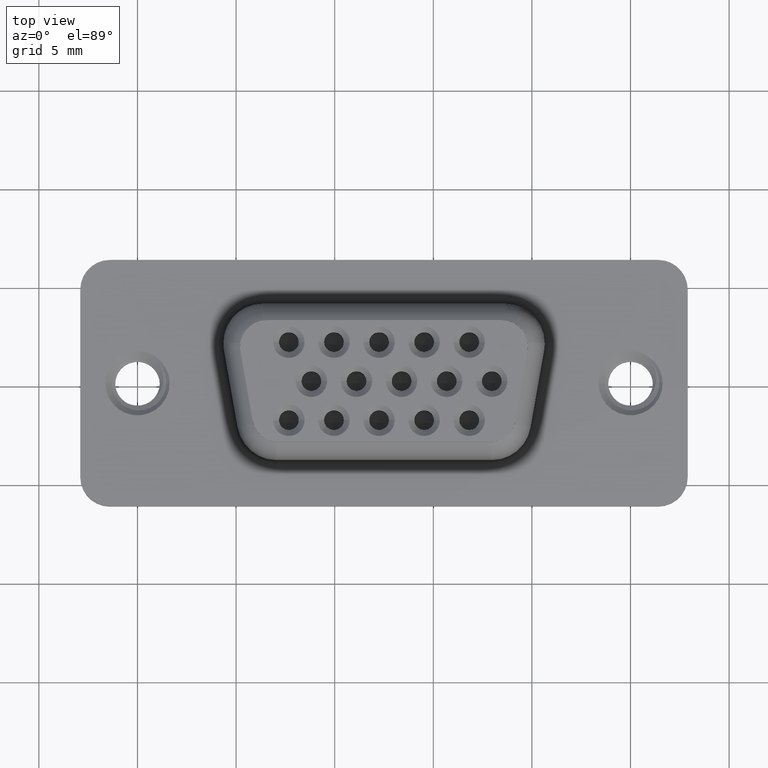
[diagram: clean part render]
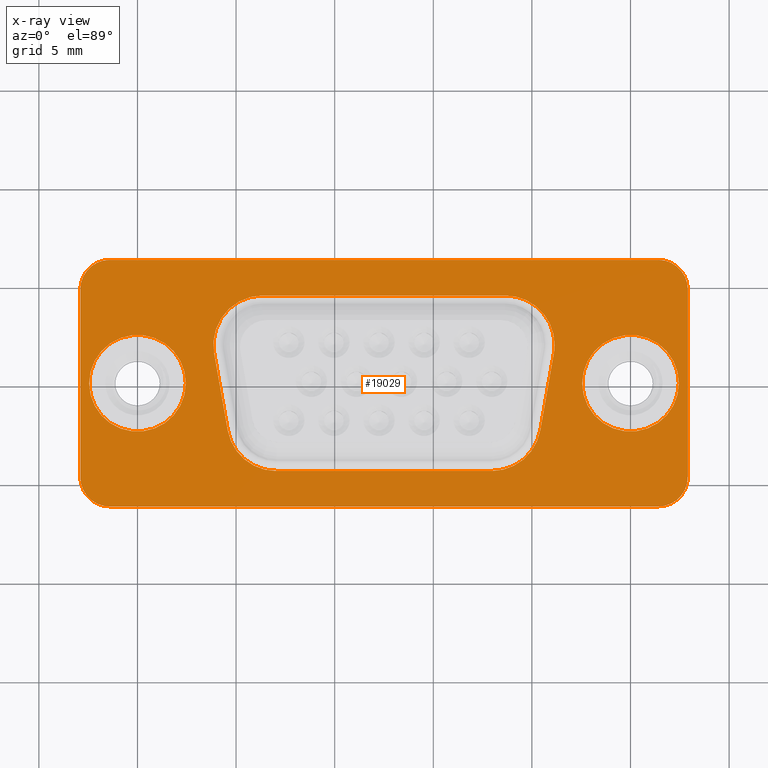
[diagram: x-ray — body ghosted, one internal face saturated and labeled with its STEP entity id]
A machine part, top view, then the same camera in x-ray: the body is ghosted and one INTERNAL B-rep face — a face not visible from any outside direction — is saturated and labeled: STEP entity #19029.
In plain terms, the highlighted planar face has unit normal (0, 0, 1).
Its self-contained STEP definition (entity closure, byte-faithful):
#93 = VERTEX_POINT ( 'NONE', #14036 ) ;
#160 = ORIENTED_EDGE ( 'NONE', *, *, #7173, .F. ) ;
#238 = ORIENTED_EDGE ( 'NONE', *, *, #6918, .F. ) ;
#296 = DIRECTION ( 'NONE',  ( -1.000000000000000000, -1.560003125878423870E-16, 0.0000000000000000000 ) ) ;
#309 = DIRECTION ( 'NONE',  ( 1.000000000000000000, 0.0000000000000000000, -0.0000000000000000000 ) ) ;
#351 = DIRECTION ( 'NONE',  ( -0.0000000000000000000, -1.000000000000000000, -0.0000000000000000000 ) ) ;
#484 = LINE ( 'NONE', #18300, #4141 ) ;
#574 = EDGE_CURVE ( 'NONE', #12745, #5405, #10669, .T. ) ;
#919 = DIRECTION ( 'NONE',  ( 1.000000000000000000, 0.0000000000000000000, 0.0000000000000000000 ) ) ;
#985 = ORIENTED_EDGE ( 'NONE', *, *, #5855, .F. ) ;
#1111 = DIRECTION ( 'NONE',  ( -0.1736481776669235866, 0.9848077530122093526, -0.0000000000000000000 ) ) ;
#1193 = AXIS2_PLACEMENT_3D ( 'NONE', #5966, #17952, #4514 ) ;
#1268 = DIRECTION ( 'NONE',  ( -0.0000000000000000000, -0.0000000000000000000, -1.000000000000000000 ) ) ;
#1364 = CARTESIAN_POINT ( 'NONE',  ( 18.65000000000000924, 1.949999999999996847, -2.168404344971008868E-16 ) ) ;
#1424 = VERTEX_POINT ( 'NONE', #16626 ) ;
#1426 = CARTESIAN_POINT ( 'NONE',  ( 26.39999999999999503, 6.250000000000001776, 0.0000000000000000000 ) ) ;
#1511 = VECTOR ( 'NONE', #309, 1000.000000000000000 ) ;
#1562 = VERTEX_POINT ( 'NONE', #9850 ) ;
#1613 = AXIS2_PLACEMENT_3D ( 'NONE', #7198, #11718, #11812 ) ;
#1632 = CARTESIAN_POINT ( 'NONE',  ( 21.15000000000001279, 1.949999999999996847, -2.168404344971008868E-16 ) ) ;
#1635 = VERTEX_POINT ( 'NONE', #12411 ) ;
#1670 = DIRECTION ( 'NONE',  ( 1.000000000000000000, 8.673617379884040402E-16, 0.0000000000000000000 ) ) ;
#1766 = CARTESIAN_POINT ( 'NONE',  ( 21.11201938253054067, 1.515879555832687187, -2.168404344971008868E-16 ) ) ;
#1919 = EDGE_CURVE ( 'NONE', #13788, #15530, #7244, .T. ) ;
#2071 = LINE ( 'NONE', #3618, #16554 ) ;
#2358 = ORIENTED_EDGE ( 'NONE', *, *, #17083, .F. ) ;
#2487 = VECTOR ( 'NONE', #4016, 999.9999999999998863 ) ;
#2611 = CIRCLE ( 'NONE', #11366, 2.499999999999999556 ) ;
#2970 = ORIENTED_EDGE ( 'NONE', *, *, #3703, .F. ) ;
#2994 = ORIENTED_EDGE ( 'NONE', *, *, #11202, .F. ) ;
#3007 = DIRECTION ( 'NONE',  ( -0.0000000000000000000, -0.0000000000000000000, -1.000000000000000000 ) ) ;
#3013 = CIRCLE ( 'NONE', #15210, 1.500000000000000888 ) ;
#3153 = DIRECTION ( 'NONE',  ( 1.000000000000000000, 0.0000000000000000000, -0.0000000000000000000 ) ) ;
#3217 = ORIENTED_EDGE ( 'NONE', *, *, #5493, .F. ) ;
#3265 = AXIS2_PLACEMENT_3D ( 'NONE', #13834, #5289, #6367 ) ;
#3377 = DIRECTION ( 'NONE',  ( -0.0000000000000000000, -0.0000000000000000000, -1.000000000000000000 ) ) ;
#3426 = DIRECTION ( 'NONE',  ( -1.000000000000000000, -0.0000000000000000000, 0.0000000000000000000 ) ) ;
#3464 = CARTESIAN_POINT ( 'NONE',  ( -2.900000000000003464, -4.750000000000002665, 0.0000000000000000000 ) ) ;
#3618 = CARTESIAN_POINT ( 'NONE',  ( 26.39999999999999503, -4.450000000000001066, 0.0000000000000000000 ) ) ;
#3703 = EDGE_CURVE ( 'NONE', #1635, #6505, #15254, .T. ) ;
#3936 = DIRECTION ( 'NONE',  ( 0.0000000000000000000, 0.0000000000000000000, 1.000000000000000000 ) ) ;
#4016 = DIRECTION ( 'NONE',  ( -0.1736481776669242527, -0.9848077530122092416, 0.0000000000000000000 ) ) ;
#4141 = VECTOR ( 'NONE', #296, 1000.000000000000000 ) ;
#4153 = ORIENTED_EDGE ( 'NONE', *, *, #9150, .F. ) ;
#4179 = DIRECTION ( 'NONE',  ( 0.0000000000000000000, 1.000000000000000000, 0.0000000000000000000 ) ) ;
#4291 = VERTEX_POINT ( 'NONE', #1766 ) ;
#4512 = EDGE_CURVE ( 'NONE', #14858, #1562, #2611, .T. ) ;
#4514 = DIRECTION ( 'NONE',  ( 1.000000000000000000, 0.0000000000000000000, 0.0000000000000000000 ) ) ;
#4559 = EDGE_CURVE ( 'NONE', #5405, #9407, #16372, .T. ) ;
#4632 = CARTESIAN_POINT ( 'NONE',  ( -1.400000000000001688, -6.250000000000001776, 0.0000000000000000000 ) ) ;
#4836 = DIRECTION ( 'NONE',  ( 1.000000000000000000, 0.0000000000000000000, 0.0000000000000000000 ) ) ;
#5008 = EDGE_LOOP ( 'NONE', ( #2970, #985, #3217, #8044, #5713, #13777, #2358, #8268 ) ) ;
#5218 = VERTEX_POINT ( 'NONE', #4632 ) ;
#5257 = ORIENTED_EDGE ( 'NONE', *, *, #5910, .F. ) ;
#5289 = DIRECTION ( 'NONE',  ( 0.0000000000000000000, 0.0000000000000000000, 1.000000000000000000 ) ) ;
#5405 = VERTEX_POINT ( 'NONE', #11010 ) ;
#5493 = EDGE_CURVE ( 'NONE', #8604, #6980, #14880, .T. ) ;
#5631 = EDGE_CURVE ( 'NONE', #93, #12594, #11759, .T. ) ;
#5713 = ORIENTED_EDGE ( 'NONE', *, *, #15055, .F. ) ;
#5837 = CARTESIAN_POINT ( 'NONE',  ( 2.449999999999999734, 0.0000000000000000000, 0.0000000000000000000 ) ) ;
#5855 = EDGE_CURVE ( 'NONE', #6980, #1635, #17520, .T. ) ;
#5910 = EDGE_CURVE ( 'NONE', #16095, #12745, #18770, .T. ) ;
#5966 = CARTESIAN_POINT ( 'NONE',  ( 26.39999999999999503, 4.750000000000000888, 0.0000000000000000000 ) ) ;
#6076 = FACE_BOUND ( 'NONE', #14824, .T. ) ;
#6103 = ORIENTED_EDGE ( 'NONE', *, *, #4512, .F. ) ;
#6367 = DIRECTION ( 'NONE',  ( -1.000000000000000000, 0.0000000000000000000, 0.0000000000000000000 ) ) ;
#6443 = CARTESIAN_POINT ( 'NONE',  ( 26.39999999999999503, -6.250000000000000000, 0.0000000000000000000 ) ) ;
#6505 = VERTEX_POINT ( 'NONE', #1426 ) ;
#6582 = EDGE_CURVE ( 'NONE', #7255, #1424, #15418, .T. ) ;
#6761 = LINE ( 'NONE', #12767, #2487 ) ;
#6874 = VERTEX_POINT ( 'NONE', #11378 ) ;
#6890 = EDGE_CURVE ( 'NONE', #4291, #93, #6761, .T. ) ;
#6918 = EDGE_CURVE ( 'NONE', #6874, #11028, #12491, .T. ) ;
#6980 = VERTEX_POINT ( 'NONE', #7050 ) ;
#7050 = CARTESIAN_POINT ( 'NONE',  ( 27.89999999999999858, -4.749999999999999112, 0.0000000000000000000 ) ) ;
#7173 = EDGE_CURVE ( 'NONE', #12594, #14858, #2071, .T. ) ;
#7198 = CARTESIAN_POINT ( 'NONE',  ( 25.00000000000000000, 4.592425496802575156E-15, 0.0000000000000000000 ) ) ;
#7244 = CIRCLE ( 'NONE', #16003, 2.449999999999999734 ) ;
#7255 = VERTEX_POINT ( 'NONE', #13726 ) ;
#7331 = EDGE_CURVE ( 'NONE', #9407, #4291, #9632, .T. ) ;
#7383 = CARTESIAN_POINT ( 'NONE',  ( -2.449999999999999734, 3.000384657911015370E-16, 0.0000000000000000000 ) ) ;
#7480 = CARTESIAN_POINT ( 'NONE',  ( 0.0000000000000000000, 0.0000000000000000000, 0.0000000000000000000 ) ) ;
#7493 = CARTESIAN_POINT ( 'NONE',  ( 6.350000000000004974, 4.449999999999997513, 0.0000000000000000000 ) ) ;
#8044 = ORIENTED_EDGE ( 'NONE', *, *, #17483, .F. ) ;
#8080 = LINE ( 'NONE', #18473, #15844 ) ;
#8268 = ORIENTED_EDGE ( 'NONE', *, *, #16371, .F. ) ;
#8442 = DIRECTION ( 'NONE',  ( 1.000000000000000000, 0.0000000000000000000, 0.0000000000000000000 ) ) ;
#8566 = CARTESIAN_POINT ( 'NONE',  ( 0.0000000000000000000, 0.0000000000000000000, 0.0000000000000000000 ) ) ;
#8584 = CARTESIAN_POINT ( 'NONE',  ( 27.89999999999999858, -4.749999999999999112, 0.0000000000000000000 ) ) ;
#8593 = DIRECTION ( 'NONE',  ( -0.0000000000000000000, -0.0000000000000000000, -1.000000000000000000 ) ) ;
#8604 = VERTEX_POINT ( 'NONE', #6443 ) ;
#8680 = DIRECTION ( 'NONE',  ( 1.000000000000000000, 8.673617379884037444E-16, 0.0000000000000000000 ) ) ;
#8855 = ORIENTED_EDGE ( 'NONE', *, *, #1919, .F. ) ;
#9061 = VECTOR ( 'NONE', #351, 1000.000000000000000 ) ;
#9089 = DIRECTION ( 'NONE',  ( -0.0000000000000000000, -0.0000000000000000000, -1.000000000000000000 ) ) ;
#9150 = EDGE_CURVE ( 'NONE', #15530, #13788, #13865, .T. ) ;
#9220 = FACE_BOUND ( 'NONE', #12785, .T. ) ;
#9288 = CARTESIAN_POINT ( 'NONE',  ( 26.39999999999999503, 4.449999999999997513, 0.0000000000000000000 ) ) ;
#9407 = VERTEX_POINT ( 'NONE', #1632 ) ;
#9587 = ORIENTED_EDGE ( 'NONE', *, *, #7331, .F. ) ;
#9632 = CIRCLE ( 'NONE', #10277, 2.500000000000002220 ) ;
#9753 = DIRECTION ( 'NONE',  ( -0.0000000000000000000, -0.0000000000000000000, -1.000000000000000000 ) ) ;
#9780 = DIRECTION ( 'NONE',  ( 1.000000000000000000, 0.0000000000000000000, 0.0000000000000000000 ) ) ;
#9850 = CARTESIAN_POINT ( 'NONE',  ( 4.575655842232465353, -2.384120444167310726, 0.0000000000000000000 ) ) ;
#9911 = CARTESIAN_POINT ( 'NONE',  ( 26.39999999999999503, -4.749999999999999112, 0.0000000000000000000 ) ) ;
#9950 = DIRECTION ( 'NONE',  ( 1.000000000000000000, 0.0000000000000000000, 0.0000000000000000000 ) ) ;
#9966 = CARTESIAN_POINT ( 'NONE',  ( 6.350000000000005862, 1.949999999999996847, -2.168404344971008868E-16 ) ) ;
#10161 = CARTESIAN_POINT ( 'NONE',  ( 7.037675224762990567, -1.950000000000002176, -2.168404344971008868E-16 ) ) ;
#10277 = AXIS2_PLACEMENT_3D ( 'NONE', #15764, #8593, #9780 ) ;
#10474 = VECTOR ( 'NONE', #1111, 999.9999999999998863 ) ;
#10486 = ORIENTED_EDGE ( 'NONE', *, *, #6890, .F. ) ;
#10597 = CARTESIAN_POINT ( 'NONE',  ( 26.39999999999999503, 4.750000000000000888, 0.0000000000000000000 ) ) ;
#10669 = LINE ( 'NONE', #9288, #1511 ) ;
#10766 = CIRCLE ( 'NONE', #3265, 1.500000000000000444 ) ;
#10935 = AXIS2_PLACEMENT_3D ( 'NONE', #9966, #18895, #11252 ) ;
#11010 = CARTESIAN_POINT ( 'NONE',  ( 18.65000000000000924, 4.449999999999997513, 0.0000000000000000000 ) ) ;
#11028 = VERTEX_POINT ( 'NONE', #14282 ) ;
#11053 = AXIS2_PLACEMENT_3D ( 'NONE', #1364, #3007, #16522 ) ;
#11202 = EDGE_CURVE ( 'NONE', #11028, #6874, #11298, .T. ) ;
#11252 = DIRECTION ( 'NONE',  ( 1.000000000000000000, 0.0000000000000000000, 0.0000000000000000000 ) ) ;
#11298 = CIRCLE ( 'NONE', #1613, 2.449999999999997513 ) ;
#11334 = DIRECTION ( 'NONE',  ( 0.0000000000000000000, 0.0000000000000000000, 1.000000000000000000 ) ) ;
#11366 = AXIS2_PLACEMENT_3D ( 'NONE', #10161, #1268, #8680 ) ;
#11378 = CARTESIAN_POINT ( 'NONE',  ( 22.55000000000000426, 4.892463962593675953E-15, 0.0000000000000000000 ) ) ;
#11718 = DIRECTION ( 'NONE',  ( -0.0000000000000000000, -0.0000000000000000000, -1.000000000000000000 ) ) ;
#11759 = CIRCLE ( 'NONE', #14273, 2.499999999999998668 ) ;
#11801 = EDGE_LOOP ( 'NONE', ( #8855, #4153 ) ) ;
#11812 = DIRECTION ( 'NONE',  ( 1.000000000000000000, 0.0000000000000000000, 0.0000000000000000000 ) ) ;
#12179 = ORIENTED_EDGE ( 'NONE', *, *, #574, .F. ) ;
#12411 = CARTESIAN_POINT ( 'NONE',  ( 27.89999999999999858, 4.750000000000000888, 0.0000000000000000000 ) ) ;
#12491 = CIRCLE ( 'NONE', #15609, 2.449999999999997513 ) ;
#12594 = VERTEX_POINT ( 'NONE', #18970 ) ;
#12745 = VERTEX_POINT ( 'NONE', #7493 ) ;
#12767 = CARTESIAN_POINT ( 'NONE',  ( 21.11201938253053356, 1.515879555832687853, -2.168404344971008868E-16 ) ) ;
#12785 = EDGE_LOOP ( 'NONE', ( #13679, #6103, #160, #14930, #10486, #9587, #17681, #12179, #5257 ) ) ;
#12861 = CARTESIAN_POINT ( 'NONE',  ( 25.00000000000000000, 4.592425496802575156E-15, 0.0000000000000000000 ) ) ;
#12966 = CARTESIAN_POINT ( 'NONE',  ( 4.575655842232465353, -2.384120444167311170, -2.168404344971008868E-16 ) ) ;
#13534 = CARTESIAN_POINT ( 'NONE',  ( -1.400000000000002132, 6.249999999999998224, 0.0000000000000000000 ) ) ;
#13679 = ORIENTED_EDGE ( 'NONE', *, *, #15646, .F. ) ;
#13726 = CARTESIAN_POINT ( 'NONE',  ( -2.900000000000003464, 4.749999999999997335, 0.0000000000000000000 ) ) ;
#13777 = ORIENTED_EDGE ( 'NONE', *, *, #6582, .F. ) ;
#13788 = VERTEX_POINT ( 'NONE', #5837 ) ;
#13834 = CARTESIAN_POINT ( 'NONE',  ( -1.400000000000001910, -4.750000000000002665, 0.0000000000000000000 ) ) ;
#13865 = CIRCLE ( 'NONE', #16352, 2.449999999999999734 ) ;
#14036 = CARTESIAN_POINT ( 'NONE',  ( 20.42434415776754975, -2.384120444167310726, 0.0000000000000000000 ) ) ;
#14273 = AXIS2_PLACEMENT_3D ( 'NONE', #16447, #9089, #1670 ) ;
#14282 = CARTESIAN_POINT ( 'NONE',  ( 27.44999999999999929, 4.592425496802575156E-15, 0.0000000000000000000 ) ) ;
#14476 = CARTESIAN_POINT ( 'NONE',  ( -1.400000000000001910, 4.749999999999997335, 0.0000000000000000000 ) ) ;
#14526 = LINE ( 'NONE', #12966, #10474 ) ;
#14698 = VECTOR ( 'NONE', #4179, 1000.000000000000000 ) ;
#14824 = EDGE_LOOP ( 'NONE', ( #2994, #238 ) ) ;
#14858 = VERTEX_POINT ( 'NONE', #17956 ) ;
#14880 = CIRCLE ( 'NONE', #17387, 1.500000000000001332 ) ;
#14912 = FACE_BOUND ( 'NONE', #11801, .T. ) ;
#14930 = ORIENTED_EDGE ( 'NONE', *, *, #5631, .F. ) ;
#15055 = EDGE_CURVE ( 'NONE', #1424, #5218, #10766, .T. ) ;
#15210 = AXIS2_PLACEMENT_3D ( 'NONE', #14476, #11334, #15548 ) ;
#15254 = CIRCLE ( 'NONE', #1193, 1.500000000000001332 ) ;
#15418 = LINE ( 'NONE', #3464, #9061 ) ;
#15530 = VERTEX_POINT ( 'NONE', #7383 ) ;
#15548 = DIRECTION ( 'NONE',  ( 1.000000000000000000, 0.0000000000000000000, 0.0000000000000000000 ) ) ;
#15569 = CARTESIAN_POINT ( 'NONE',  ( 3.887980617469481093, 1.515879555832687853, 0.0000000000000000000 ) ) ;
#15609 = AXIS2_PLACEMENT_3D ( 'NONE', #12861, #17264, #919 ) ;
#15646 = EDGE_CURVE ( 'NONE', #1562, #16095, #14526, .T. ) ;
#15764 = CARTESIAN_POINT ( 'NONE',  ( 18.65000000000000924, 1.949999999999996847, -2.168404344971008868E-16 ) ) ;
#15768 = VERTEX_POINT ( 'NONE', #13534 ) ;
#15844 = VECTOR ( 'NONE', #17392, 1000.000000000000000 ) ;
#16003 = AXIS2_PLACEMENT_3D ( 'NONE', #7480, #3377, #4836 ) ;
#16095 = VERTEX_POINT ( 'NONE', #15569 ) ;
#16352 = AXIS2_PLACEMENT_3D ( 'NONE', #8566, #9753, #9950 ) ;
#16371 = EDGE_CURVE ( 'NONE', #6505, #15768, #484, .T. ) ;
#16372 = CIRCLE ( 'NONE', #11053, 2.500000000000002220 ) ;
#16447 = CARTESIAN_POINT ( 'NONE',  ( 17.96232477523702542, -1.950000000000002176, -2.168404344971008868E-16 ) ) ;
#16522 = DIRECTION ( 'NONE',  ( 1.000000000000000000, 0.0000000000000000000, 0.0000000000000000000 ) ) ;
#16554 = VECTOR ( 'NONE', #3426, 1000.000000000000000 ) ;
#16575 = DIRECTION ( 'NONE',  ( 0.0000000000000000000, 0.0000000000000000000, 1.000000000000000000 ) ) ;
#16626 = CARTESIAN_POINT ( 'NONE',  ( -2.900000000000002576, -4.750000000000002665, 0.0000000000000000000 ) ) ;
#16873 = PLANE ( 'NONE',  #17794 ) ;
#17083 = EDGE_CURVE ( 'NONE', #15768, #7255, #3013, .T. ) ;
#17264 = DIRECTION ( 'NONE',  ( -0.0000000000000000000, -0.0000000000000000000, -1.000000000000000000 ) ) ;
#17387 = AXIS2_PLACEMENT_3D ( 'NONE', #9911, #3936, #8442 ) ;
#17392 = DIRECTION ( 'NONE',  ( 1.000000000000000000, 9.360018755270542231E-17, -0.0000000000000000000 ) ) ;
#17483 = EDGE_CURVE ( 'NONE', #5218, #8604, #8080, .T. ) ;
#17520 = LINE ( 'NONE', #8584, #14698 ) ;
#17681 = ORIENTED_EDGE ( 'NONE', *, *, #4559, .F. ) ;
#17794 = AXIS2_PLACEMENT_3D ( 'NONE', #10597, #16575, #3153 ) ;
#17952 = DIRECTION ( 'NONE',  ( 0.0000000000000000000, 0.0000000000000000000, 1.000000000000000000 ) ) ;
#17956 = CARTESIAN_POINT ( 'NONE',  ( 7.037675224762989679, -4.450000000000002842, 0.0000000000000000000 ) ) ;
#18052 = FACE_OUTER_BOUND ( 'NONE', #5008, .T. ) ;
#18300 = CARTESIAN_POINT ( 'NONE',  ( 26.39999999999999503, 6.250000000000001776, 0.0000000000000000000 ) ) ;
#18473 = CARTESIAN_POINT ( 'NONE',  ( 26.39999999999999503, -6.249999999999999112, 0.0000000000000000000 ) ) ;
#18770 = CIRCLE ( 'NONE', #10935, 2.499999999999999556 ) ;
#18895 = DIRECTION ( 'NONE',  ( -0.0000000000000000000, -0.0000000000000000000, -1.000000000000000000 ) ) ;
#18970 = CARTESIAN_POINT ( 'NONE',  ( 17.96232477523702542, -4.450000000000001066, 0.0000000000000000000 ) ) ;
#19029 = ADVANCED_FACE ( 'NONE', ( #6076, #9220, #18052, #14912 ), #16873, .F. ) ;